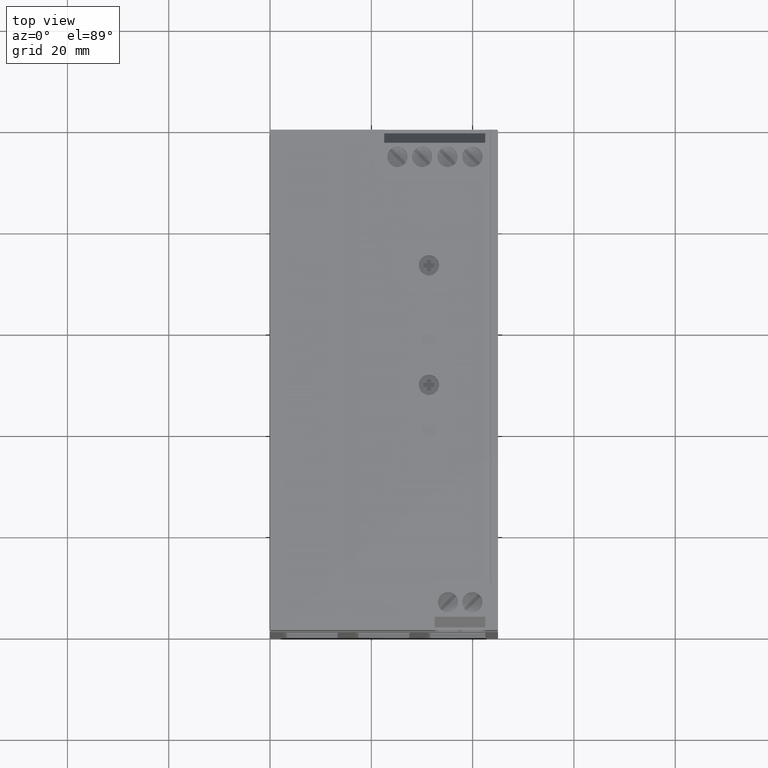
[diagram: clean part render]
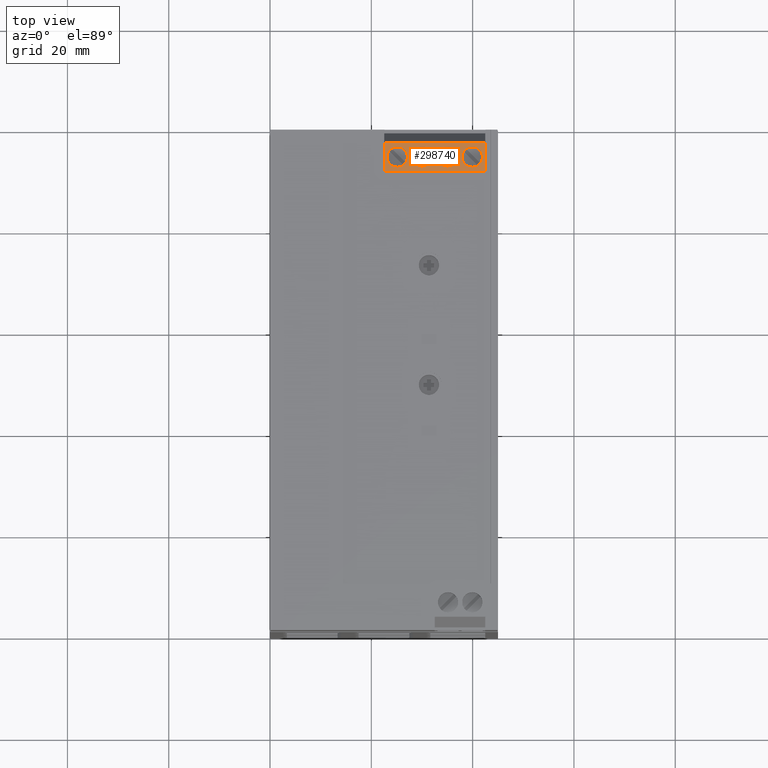
[diagram: same view with one face highlighted and labeled with its STEP entity id]
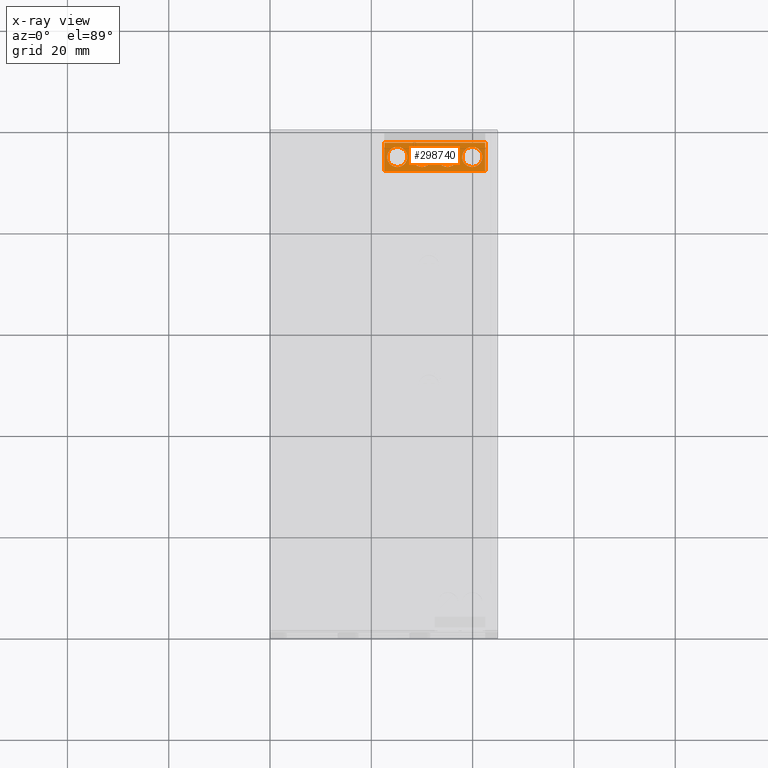
[diagram: x-ray of the same camera — body ghosted, the highlighted face saturated]
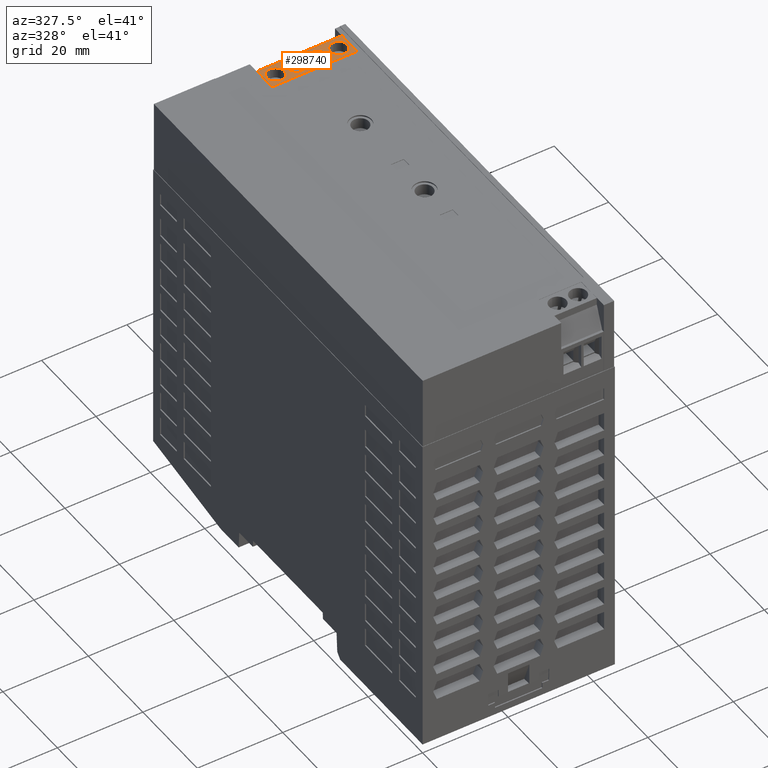
[diagram: same view with one face highlighted and labeled with its STEP entity id]
A machine part, top view. The second image highlights one B-rep face of the part: STEP entity #298740.
The next image is the same camera in x-ray: the body ghosted, the highlighted face saturated — about 0% of this face is hidden behind the body in this view.
A second angle (auxiliary view) of the same face is appended — the face is thin or edge-on in the first view.
In plain terms, the highlighted planar face has unit normal (0, -0, 1).
Its self-contained STEP definition (entity closure, byte-faithful):
#295220=CARTESIAN_POINT('',(6.45,89.,41.2000000000025));
#295230=VERTEX_POINT('',#295220);
#295260=CARTESIAN_POINT('',(1.77635683940025E-14,89.,41.2000000000025));
#295270=DIRECTION('',(1.,2.46519032881566E-32,2.22044604925031E-16));
#295280=VECTOR('',#295270,1.);
#295290=LINE('',#295260,#295280);
#295300=CARTESIAN_POINT('',(-13.5,89.,41.2000000000025));
#295310=VERTEX_POINT('',#295300);
#295320=EDGE_CURVE('',#295310,#295230,#295290,.T.);
#295690=CARTESIAN_POINT('',(-13.5,89.,46.8000000000022));
#295700=VERTEX_POINT('',#295690);
#295730=CARTESIAN_POINT('',(1.77635683940025E-14,89.,46.8000000000022));
#295740=DIRECTION('',(-1.,-3.69778549322349E-32,-2.22044604925031E-16));
#295750=VECTOR('',#295740,1.);
#295760=LINE('',#295730,#295750);
#295770=CARTESIAN_POINT('',(6.44999999999999,89.,46.8000000000022));
#295780=VERTEX_POINT('',#295770);
#295790=EDGE_CURVE('',#295780,#295700,#295760,.T.);
#297930=CARTESIAN_POINT('',(-18.525,89.,19.9000000000025));
#297940=DIRECTION('',(1.23259516440783E-32,1.,-1.66533453693773E-16));
#297950=DIRECTION('',(2.22044604925031E-16,-1.66533453693773E-16,-1.));
#297960=AXIS2_PLACEMENT_3D('',#297930,#297940,#297950);
#297970=PLANE('',#297960);
#297980=CARTESIAN_POINT('',(-10.925,89.,43.9804133168945));
#297990=DIRECTION('',(1.38777878078145E-16,-1.,0.));
#298000=DIRECTION('',(0.,0.,-1.));
#298010=AXIS2_PLACEMENT_3D('',#297980,#297990,#298000);
#298020=CIRCLE('',#298010,2.);
#298030=CARTESIAN_POINT('',(-10.925,89.,41.9804133168945));
#298040=VERTEX_POINT('',#298030);
#298050=CARTESIAN_POINT('',(-10.925,89.,45.9804133168945));
#298060=VERTEX_POINT('',#298050);
#298070=EDGE_CURVE('',#298040,#298060,#298020,.T.);
#298080=ORIENTED_EDGE('',*,*,#298070,.T.);
#298090=EDGE_CURVE('',#298060,#298040,#298020,.T.);
#298100=ORIENTED_EDGE('',*,*,#298090,.T.);
#298110=EDGE_LOOP('',(#298100,#298080));
#298120=FACE_BOUND('',#298110,.T.);
#298130=CARTESIAN_POINT('',(3.87500000000002,89.,43.9804133168945));
#298140=DIRECTION('',(1.38777878078145E-16,-1.,0.));
#298150=DIRECTION('',(0.,0.,-1.));
#298160=AXIS2_PLACEMENT_3D('',#298130,#298140,#298150);
#298170=CIRCLE('',#298160,2.);
#298180=CARTESIAN_POINT('',(3.87500000000002,89.,41.9804133168945));
#298190=VERTEX_POINT('',#298180);
#298200=CARTESIAN_POINT('',(3.87500000000002,89.,45.9804133168945));
#298210=VERTEX_POINT('',#298200);
#298220=EDGE_CURVE('',#298190,#298210,#298170,.T.);
#298230=ORIENTED_EDGE('',*,*,#298220,.T.);
#298240=EDGE_CURVE('',#298210,#298190,#298170,.T.);
#298250=ORIENTED_EDGE('',*,*,#298240,.T.);
#298260=EDGE_LOOP('',(#298250,#298230));
#298270=FACE_BOUND('',#298260,.T.);
#298280=CARTESIAN_POINT('',(-1.02499999999998,89.,43.9804133168945));
#298290=DIRECTION('',(1.38777878078145E-16,-1.,0.));
#298300=DIRECTION('',(0.,0.,-1.));
#298310=AXIS2_PLACEMENT_3D('',#298280,#298290,#298300);
#298320=CIRCLE('',#298310,2.);
#298330=CARTESIAN_POINT('',(-1.02499999999998,89.,41.9804133168945));
#298340=VERTEX_POINT('',#298330);
#298350=CARTESIAN_POINT('',(-1.02499999999998,89.,45.9804133168945));
#298360=VERTEX_POINT('',#298350);
#298370=EDGE_CURVE('',#298340,#298360,#298320,.T.);
#298380=ORIENTED_EDGE('',*,*,#298370,.T.);
#298390=EDGE_CURVE('',#298360,#298340,#298320,.T.);
#298400=ORIENTED_EDGE('',*,*,#298390,.T.);
#298410=EDGE_LOOP('',(#298400,#298380));
#298420=FACE_BOUND('',#298410,.T.);
#298430=CARTESIAN_POINT('',(-6.02499999999998,89.,43.9804133168945));
#298440=DIRECTION('',(1.38777878078145E-16,-1.,0.));
#298450=DIRECTION('',(0.,0.,-1.));
#298460=AXIS2_PLACEMENT_3D('',#298430,#298440,#298450);
#298470=CIRCLE('',#298460,2.);
#298480=CARTESIAN_POINT('',(-6.02499999999998,89.,41.9804133168945));
#298490=VERTEX_POINT('',#298480);
#298500=CARTESIAN_POINT('',(-6.02499999999998,89.,45.9804133168945));
#298510=VERTEX_POINT('',#298500);
#298520=EDGE_CURVE('',#298490,#298510,#298470,.T.);
#298530=ORIENTED_EDGE('',*,*,#298520,.T.);
#298540=EDGE_CURVE('',#298510,#298490,#298470,.T.);
#298550=ORIENTED_EDGE('',*,*,#298540,.T.);
#298560=EDGE_LOOP('',(#298550,#298530));
#298570=FACE_BOUND('',#298560,.T.);
#298580=ORIENTED_EDGE('',*,*,#295790,.F.);
#298590=CARTESIAN_POINT('',(-13.5,89.,-0.00958668310546074));
#298600=DIRECTION('',(2.22044604925031E-16,-1.66533453693773E-16,-1.));
#298610=VECTOR('',#298600,1.);
#298620=LINE('',#298590,#298610);
#298630=EDGE_CURVE('',#295700,#295310,#298620,.T.);
#298640=ORIENTED_EDGE('',*,*,#298630,.F.);
#298650=ORIENTED_EDGE('',*,*,#295320,.F.);
#298660=CARTESIAN_POINT('',(6.45,89.,-0.00958668310546074));
#298670=DIRECTION('',(-2.22044604925031E-16,1.66533453693773E-16,1.));
#298680=VECTOR('',#298670,1.);
#298690=LINE('',#298660,#298680);
#298700=EDGE_CURVE('',#295230,#295780,#298690,.T.);
#298710=ORIENTED_EDGE('',*,*,#298700,.F.);
#298720=EDGE_LOOP('',(#298710,#298650,#298640,#298580));
#298730=FACE_OUTER_BOUND('',#298720,.T.);
#298740=ADVANCED_FACE('',(#298120,#298270,#298420,#298570,#298730),
#297970,.T.);